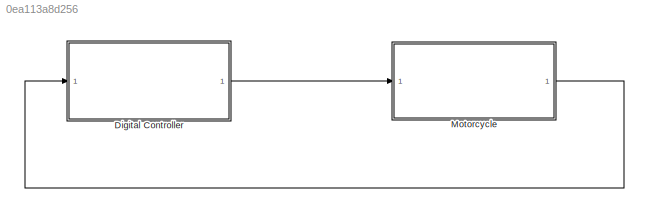
MODEL slx_0ea113a8d256
KIND model
CONFIG AbsTol = auto
CONFIG EnableMultiTasking = on
CONFIG FixedStep = auto
CONFIG MaxStep = auto
CONFIG MinStep = auto
CONFIG RelTol = 1e-3
CONFIG SampleTimeConstraint = Unconstrained
CONFIG SolverName = FixedStepAuto
CONFIG StartTime = 0.0
CONFIG StopTime = inf
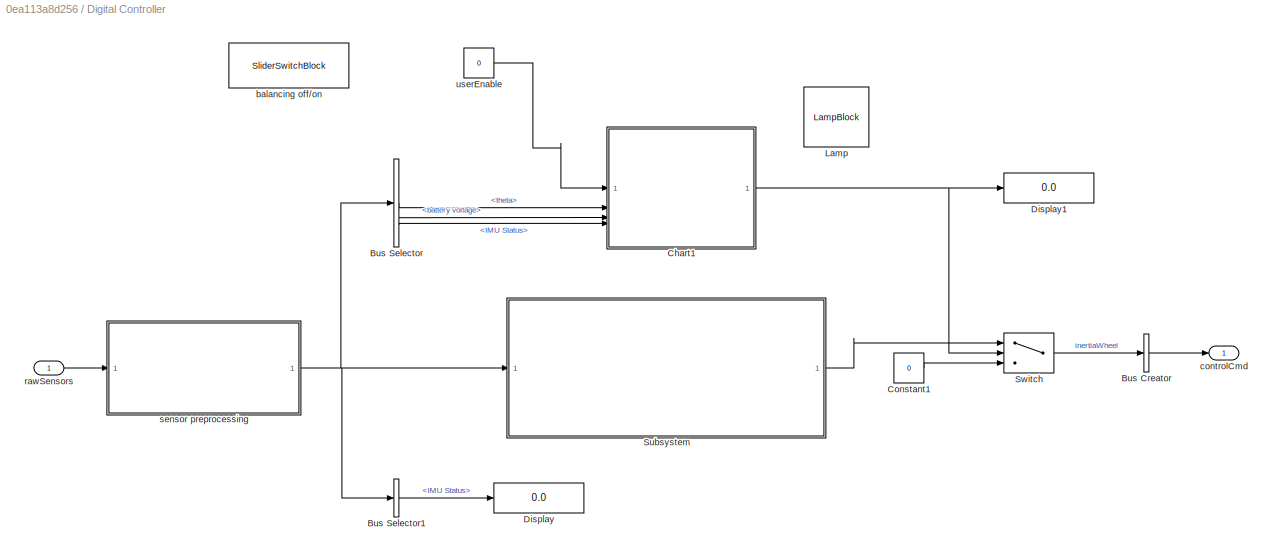
BLOCK [SubSystem] Digital Controller
BLOCK [BusCreator] Digital Controller/Bus Creator
  DisplayOption = bar
  InheritFromInputs = on
  Inputs = 1
BLOCK [BusSelector] Digital Controller/Bus Selector
  OutputSignals = theta,battery voltage,IMU Status
BLOCK [BusSelector] Digital Controller/Bus Selector1
  OutputSignals = IMU Status
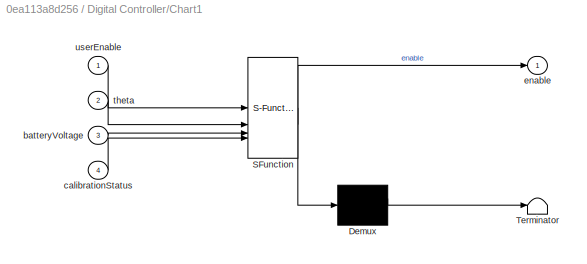
BLOCK [SubSystem] Digital Controller/Chart1
  ErrorFcn = Stateflow.Translate.translate
  PermitHierarchicalResolution = ExplicitOnly
  SFBlockType = Chart
  TreatAsAtomicUnit = on
BLOCK [Demux] Digital Controller/Chart1/ Demux 
  Outputs = 1
BLOCK [S-Function] Digital Controller/Chart1/ SFunction 
  EnableBusSupport = on
  FunctionName = sf_sfun
  PortCounts = [4 2]
  SFcnIsStateOwnerBlock = off
  SFunctionDeploymentMode = off
  Tag = Stateflow S-Function 1
BLOCK [Terminator] Digital Controller/Chart1/ Terminator 
BLOCK [Inport] Digital Controller/Chart1/batteryVoltage
  Port = 3
BLOCK [Inport] Digital Controller/Chart1/calibrationStatus
  Port = 4
BLOCK [Outport] Digital Controller/Chart1/enable
BLOCK [Inport] Digital Controller/Chart1/theta
  Port = 2
BLOCK [Inport] Digital Controller/Chart1/userEnable
BLOCK [Constant] Digital Controller/Constant1
  SampleTime = Ts
  Value = 0
BLOCK [Display] Digital Controller/Display
  Decimation = 1
BLOCK [Display] Digital Controller/Display1
  Decimation = 1
BLOCK [LampBlock] Digital Controller/Lamp
  LabelPosition = Hide
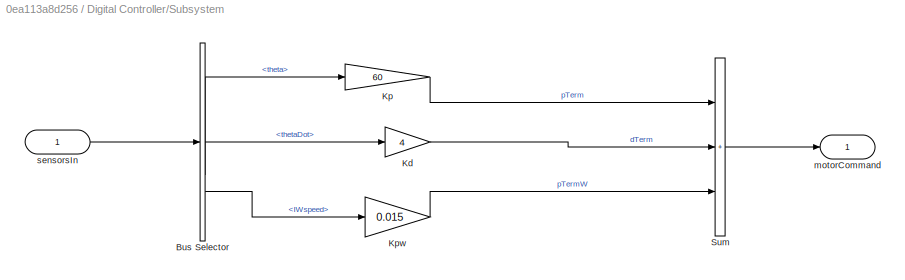
BLOCK [SubSystem] Digital Controller/Subsystem
BLOCK [BusSelector] Digital Controller/Subsystem/Bus Selector
  OutputSignals = theta,thetaDot,IWspeed
BLOCK [Gain] Digital Controller/Subsystem/Kd
  Gain = 4
BLOCK [Gain] Digital Controller/Subsystem/Kp
  Gain = 60
BLOCK [Gain] Digital Controller/Subsystem/Kpw
  Gain = 0.015
BLOCK [Sum] Digital Controller/Subsystem/Sum
  IconShape = rectangular
  Inputs = +|+|+
BLOCK [Outport] Digital Controller/Subsystem/motorCommand
BLOCK [Inport] Digital Controller/Subsystem/sensorsIn
BLOCK [Switch] Digital Controller/Switch
  Criteria = u2 > Threshold
  InputSameDT = off
  SaturateOnIntegerOverflow = off
BLOCK [SliderSwitchBlock] Digital Controller/balancing off//on
  LabelPosition = Bottom
BLOCK [Outport] Digital Controller/controlCmd
BLOCK [Inport] Digital Controller/rawSensors
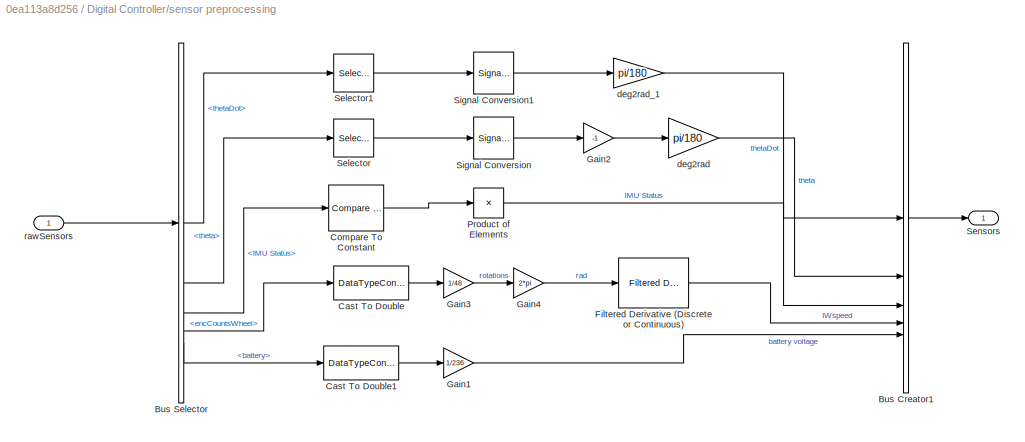
BLOCK [SubSystem] Digital Controller/sensor preprocessing
BLOCK [BusCreator] Digital Controller/sensor preprocessing/Bus Creator1
  DisplayOption = bar
  InheritFromInputs = on
  Inputs = 5
BLOCK [BusSelector] Digital Controller/sensor preprocessing/Bus Selector
  OutputSignals = thetaDot,theta,IMU Status,encCountsWheel,battery
BLOCK [DataTypeConversion] Digital Controller/sensor preprocessing/Cast To Double
  OutDataTypeStr = double
  RndMeth = Floor
  SaturateOnIntegerOverflow = off
BLOCK [DataTypeConversion] Digital Controller/sensor preprocessing/Cast To Double1
  OutDataTypeStr = double
  RndMeth = Floor
  SaturateOnIntegerOverflow = off
BLOCK [Reference] Digital Controller/sensor preprocessing/Compare To Constant  REF=simulink/Logic and Bit
Operations/Compare
To Constant
  SourceBlock = simulink/Logic and Bit\nOperations/Compare\nTo Constant
  SourceType = Compare To Constant
BLOCK [Reference] Digital Controller/sensor preprocessing/Filtered Derivative (Discrete or Continuous)  REF=eeGeneralControl/Filtered Derivative
(Discrete or Continuous)
  LibrarySourceBlock = ee_sl_lib/General Control/Filtered Derivative\n(Discrete or Continuous)
  SourceBlock = eeGeneralControl/Filtered Derivative\n(Discrete or Continuous)
  SourceType = Filtered Derivative (Discrete or Continuous)
BLOCK [Gain] Digital Controller/sensor preprocessing/Gain1
  Gain = 1/236
BLOCK [Gain] Digital Controller/sensor preprocessing/Gain2
  Gain = -1
BLOCK [Gain] Digital Controller/sensor preprocessing/Gain3
  Gain = 1/48
BLOCK [Gain] Digital Controller/sensor preprocessing/Gain4
  Gain = 2*pi
BLOCK [Product] Digital Controller/sensor preprocessing/Product of Elements
  Inputs = *
BLOCK [Selector] Digital Controller/sensor preprocessing/Selector
  IndexOptions = Index vector (dialog)
  Indices = [2]
  InputPortWidth = 3
  OutputSizes = 1
BLOCK [Selector] Digital Controller/sensor preprocessing/Selector1
  IndexOptions = Index vector (dialog)
  Indices = [2]
  InputPortWidth = 3
  OutputSizes = 1
BLOCK [Outport] Digital Controller/sensor preprocessing/Sensors
BLOCK [SignalConversion] Digital Controller/sensor preprocessing/Signal Conversion
  OverrideOpt = off
BLOCK [SignalConversion] Digital Controller/sensor preprocessing/Signal Conversion1
  OverrideOpt = off
BLOCK [Gain] Digital Controller/sensor preprocessing/deg2rad
  Gain = pi/180
BLOCK [Gain] Digital Controller/sensor preprocessing/deg2rad_1
  Gain = pi/180
BLOCK [Inport] Digital Controller/sensor preprocessing/rawSensors
BLOCK [Constant] Digital Controller/userEnable
  SampleTime = Ts
  Value = 0
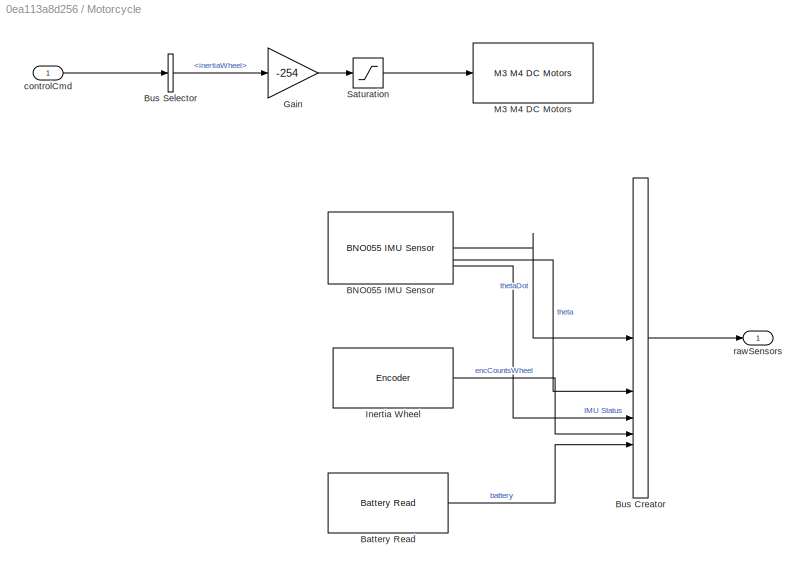
BLOCK [SubSystem] Motorcycle
BLOCK [Reference] Motorcycle/BNO055 IMU Sensor  REF=arduinosensorlib/BNO055 IMU Sensor
  SourceBlock = arduinosensorlib/BNO055 IMU Sensor
  SourceType = BNO055
BLOCK [Reference] Motorcycle/Battery Read  REF=arduinomotorcarrierlib/Battery Read
  SourceBlock = arduinomotorcarrierlib/Battery Read
  SourceType = motorcarrier.blocks.mkrmotorcarrier_Battery
BLOCK [BusCreator] Motorcycle/Bus Creator
  DisplayOption = bar
  InheritFromInputs = on
  Inputs = 5
BLOCK [BusSelector] Motorcycle/Bus Selector
  OutputSignals = inertiaWheel
BLOCK [Gain] Motorcycle/Gain
  Gain = -254
BLOCK [Reference] Motorcycle/Inertia Wheel  REF=arduinomotorcarrierlib/Encoder
  SourceBlock = arduinomotorcarrierlib/Encoder
  SourceType = motorcarrier.blocks.mkrmotorcarrier_Encoder
BLOCK [Reference] Motorcycle/M3 M4 DC Motors  REF=arduinomotorcarrierlib/M3 M4 DC Motors
  SourceBlock = arduinomotorcarrierlib/M3 M4 DC Motors
  SourceType = DC Motor
BLOCK [Saturate] Motorcycle/Saturation
  LowerLimit = -255
  UpperLimit = 255
BLOCK [Inport] Motorcycle/controlCmd
BLOCK [Outport] Motorcycle/rawSensors
LINE Digital Controller/Bus Creator:1 -> Digital Controller/controlCmd:1
LINE Digital Controller/Bus Selector1:1 -> Digital Controller/Display:1
LINE Digital Controller/Bus Selector:1 -> Digital Controller/Chart1:2
LINE Digital Controller/Bus Selector:2 -> Digital Controller/Chart1:3
LINE Digital Controller/Bus Selector:3 -> Digital Controller/Chart1:4
NET Digital Controller/Chart1:1 -> Digital Controller/Display1:1, Digital Controller/Switch:2
LINE Digital Controller/Constant1:1 -> Digital Controller/Switch:3
LINE Digital Controller/Subsystem/Bus Selector:1 -> Digital Controller/Subsystem/Kp:1
LINE Digital Controller/Subsystem/Bus Selector:2 -> Digital Controller/Subsystem/Kd:1
LINE Digital Controller/Subsystem/Bus Selector:3 -> Digital Controller/Subsystem/Kpw:1
LINE Digital Controller/Subsystem/Kd:1 -> Digital Controller/Subsystem/Sum:2
LINE Digital Controller/Subsystem/Kp:1 -> Digital Controller/Subsystem/Sum:1
LINE Digital Controller/Subsystem/Kpw:1 -> Digital Controller/Subsystem/Sum:3
LINE Digital Controller/Subsystem/Sum:1 -> Digital Controller/Subsystem/motorCommand:1
LINE Digital Controller/Subsystem/sensorsIn:1 -> Digital Controller/Subsystem/Bus Selector:1
LINE Digital Controller/Subsystem:1 -> Digital Controller/Switch:1
LINE Digital Controller/Switch:1 -> Digital Controller/Bus Creator:1
LINE Digital Controller/rawSensors:1 -> Digital Controller/sensor preprocessing:1
LINE Digital Controller/sensor preprocessing/Bus Creator1:1 -> Digital Controller/sensor preprocessing/Sensors:1
LINE Digital Controller/sensor preprocessing/Bus Selector:1 -> Digital Controller/sensor preprocessing/Selector1:1
LINE Digital Controller/sensor preprocessing/Bus Selector:2 -> Digital Controller/sensor preprocessing/Selector:1
LINE Digital Controller/sensor preprocessing/Bus Selector:3 -> Digital Controller/sensor preprocessing/Compare To Constant:1
LINE Digital Controller/sensor preprocessing/Bus Selector:4 -> Digital Controller/sensor preprocessing/Cast To Double:1
LINE Digital Controller/sensor preprocessing/Bus Selector:5 -> Digital Controller/sensor preprocessing/Cast To Double1:1
LINE Digital Controller/sensor preprocessing/Cast To Double1:1 -> Digital Controller/sensor preprocessing/Gain1:1
LINE Digital Controller/sensor preprocessing/Cast To Double:1 -> Digital Controller/sensor preprocessing/Gain3:1
LINE Digital Controller/sensor preprocessing/Compare To Constant:1 -> Digital Controller/sensor preprocessing/Product of Elements:1
LINE Digital Controller/sensor preprocessing/Filtered Derivative (Discrete or Continuous):1 -> Digital Controller/sensor preprocessing/Bus Creator1:4
LINE Digital Controller/sensor preprocessing/Gain1:1 -> Digital Controller/sensor preprocessing/Bus Creator1:5
LINE Digital Controller/sensor preprocessing/Gain2:1 -> Digital Controller/sensor preprocessing/deg2rad:1
LINE Digital Controller/sensor preprocessing/Gain3:1 -> Digital Controller/sensor preprocessing/Gain4:1
LINE Digital Controller/sensor preprocessing/Gain4:1 -> Digital Controller/sensor preprocessing/Filtered Derivative (Discrete or Continuous):1
LINE Digital Controller/sensor preprocessing/Product of Elements:1 -> Digital Controller/sensor preprocessing/Bus Creator1:3
LINE Digital Controller/sensor preprocessing/Selector1:1 -> Digital Controller/sensor preprocessing/Signal Conversion1:1
LINE Digital Controller/sensor preprocessing/Selector:1 -> Digital Controller/sensor preprocessing/Signal Conversion:1
LINE Digital Controller/sensor preprocessing/Signal Conversion1:1 -> Digital Controller/sensor preprocessing/deg2rad_1:1
LINE Digital Controller/sensor preprocessing/Signal Conversion:1 -> Digital Controller/sensor preprocessing/Gain2:1
LINE Digital Controller/sensor preprocessing/deg2rad:1 -> Digital Controller/sensor preprocessing/Bus Creator1:2
LINE Digital Controller/sensor preprocessing/deg2rad_1:1 -> Digital Controller/sensor preprocessing/Bus Creator1:1
LINE Digital Controller/sensor preprocessing/rawSensors:1 -> Digital Controller/sensor preprocessing/Bus Selector:1
NET Digital Controller/sensor preprocessing:1 -> Digital Controller/Bus Selector1:1, Digital Controller/Bus Selector:1, Digital Controller/Subsystem:1
LINE Digital Controller/userEnable:1 -> Digital Controller/Chart1:1
LINE Digital Controller:1 -> Motorcycle:1
LINE Motorcycle/BNO055 IMU Sensor:1 -> Motorcycle/Bus Creator:1
LINE Motorcycle/BNO055 IMU Sensor:2 -> Motorcycle/Bus Creator:2
LINE Motorcycle/BNO055 IMU Sensor:3 -> Motorcycle/Bus Creator:3
LINE Motorcycle/Battery Read:1 -> Motorcycle/Bus Creator:5
LINE Motorcycle/Bus Creator:1 -> Motorcycle/rawSensors:1
LINE Motorcycle/Bus Selector:1 -> Motorcycle/Gain:1
LINE Motorcycle/Gain:1 -> Motorcycle/Saturation:1
LINE Motorcycle/Inertia Wheel:1 -> Motorcycle/Bus Creator:4
LINE Motorcycle/Saturation:1 -> Motorcycle/M3 M4 DC Motors:1
LINE Motorcycle/controlCmd:1 -> Motorcycle/Bus Selector:1
LINE Motorcycle:1 -> Digital Controller:1
note: NET lines group one-source signal fan-out (src -> all destinations, sorted); 1:1 wires keep LINE
CHART Digital Controller/Chart1 states=12 transitions=11
  STATE_LABEL 'checkFallen'
  STATE_LABEL 'fallen\nentry: upright = false'
  STATE_LABEL 'standing\nentry: upright = true\n'
  STATE_LABEL '[abs(theta) <pi*8/180]'
  STATE_LABEL '[abs(theta) > pi*8/180]'
  STATE_LABEL 'fallen\nentry: upright = false'
  STATE_LABEL 'standing\nentry: upright = true\n'
  STATE_LABEL 'checkIMUCalib'
  STATE_LABEL 'imuNotCalibrated\nentry:\nIMUCalibrated = false;'
  STATE_LABEL 'imuCalibrated\nentry:\nIMUCalibrated = true;'
  STATE_LABEL '[calibrationStatus == true]'
  STATE_LABEL 'imuNotCalibrated\nentry:\nIMUCalibrated = false;'
  STATE_LABEL 'imuCalibrated\nentry:\nIMUCalibrated = true;'
  STATE_LABEL 'checkBattery'
  STATE_LABEL 'batteryNotCharged\nentry:\nbatteryOK = false;'
  STATE_LABEL 'batteryCharged\nentry:\nbatteryOK = true;'
  STATE_LABEL '[batteryVoltage < 3.7]'
  STATE_LABEL '[batteryVoltage >= 3.7]'
  STATE_LABEL 'batteryNotCharged\nentry:\nbatteryOK = false;'
  STATE_LABEL 'batteryCharged\nentry:\nbatteryOK = true;'
  STATE_LABEL 'calculateEnable'
  STATE_LABEL 'disableControl\nentry: enable = false'
  STATE_LABEL 'enableControl\nentry: enable = true'
  STATE_LABEL '[userEnable&& batteryOK && IMUCalibrated && upright]'
  STATE_LABEL '[not(userEnable) || not(batteryOK) || not(IMUCalibrated) || not(upright)]'
  STATE_LABEL 'disableControl\nentry: enable = false'
  STATE_LABEL 'enableControl\nentry: enable = true'
CHART  states=0 transitions=0
